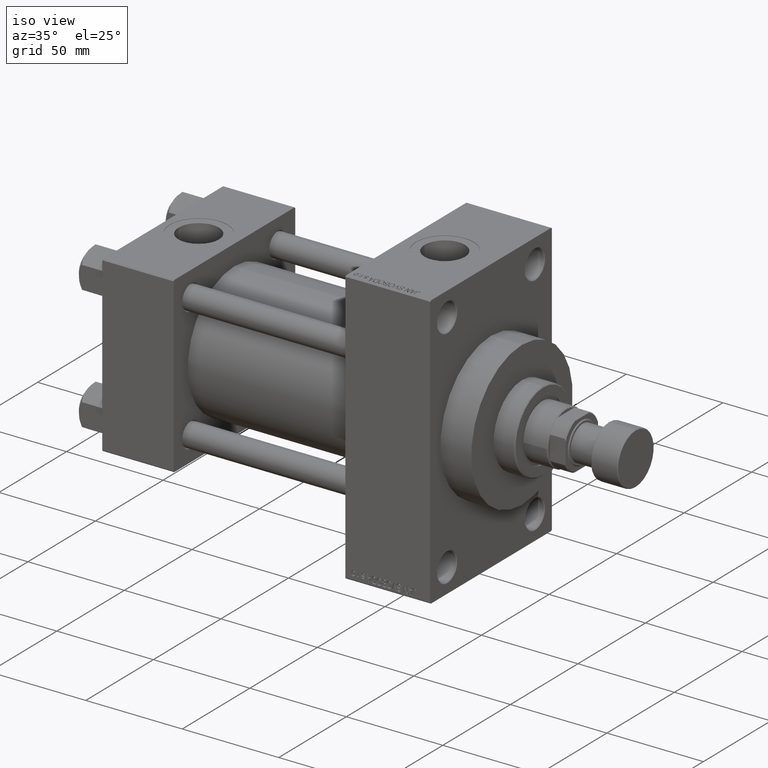
[diagram: clean part render]
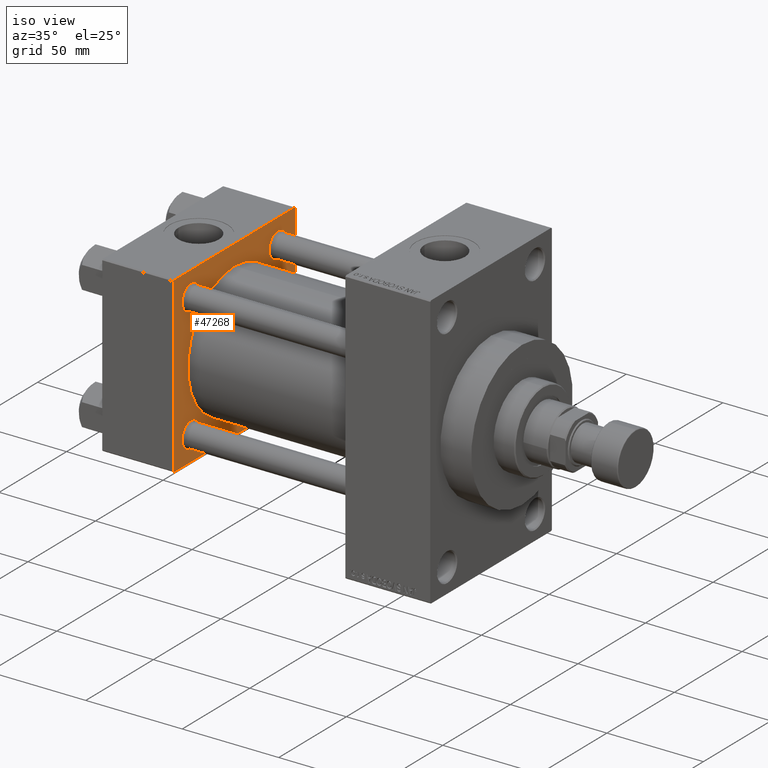
[diagram: same view with one face highlighted and labeled with its STEP entity id]
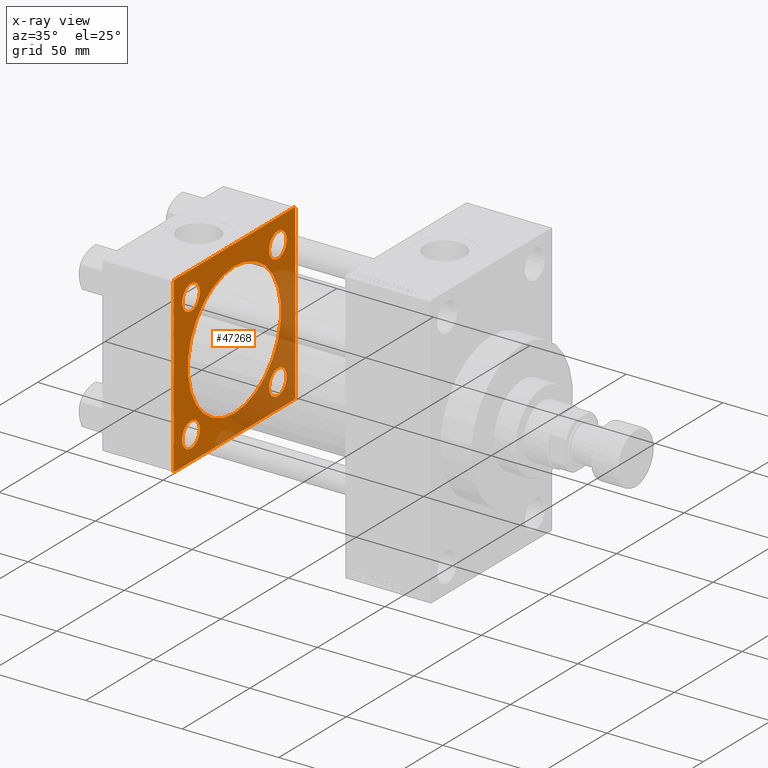
[diagram: x-ray of the same camera — body ghosted, the highlighted face saturated]
A machine part, iso view. The second image highlights one B-rep face of the part: STEP entity #47268.
The next image is the same camera in x-ray: the body ghosted, the highlighted face saturated — about 32% of this face is hidden behind the body in this view.
In plain terms, the highlighted planar face has unit normal (-1, 0, 0).
Its self-contained STEP definition (entity closure, byte-faithful):
#154 = ORIENTED_EDGE ( 'NONE', *, *, #6640, .T. ) ;
#313 = FACE_OUTER_BOUND ( 'NONE', #21909, .T. ) ;
#762 = ORIENTED_EDGE ( 'NONE', *, *, #43639, .T. ) ;
#1005 = DIRECTION ( 'NONE',  ( -1.000000000000000000, 0.000000000000000000, -0.000000000000000000 ) ) ;
#1214 = EDGE_CURVE ( 'NONE', #13415, #41546, #13810, .T. ) ;
#1744 = EDGE_CURVE ( 'NONE', #32832, #40432, #7410, .T. ) ;
#1947 = VECTOR ( 'NONE', #41657, 1000.000000000000000 ) ;
#2139 = ORIENTED_EDGE ( 'NONE', *, *, #1744, .T. ) ;
#2208 = CARTESIAN_POINT ( 'NONE',  ( 37.00000000000000000, 45.00000000000000000, 44.49999999999999289 ) ) ;
#2610 = CIRCLE ( 'NONE', #45731, 6.499999999999950262 ) ;
#2832 = CARTESIAN_POINT ( 'NONE',  ( 37.00000000000000000, 44.49999999999997158, 45.00000000000000711 ) ) ;
#3592 = VERTEX_POINT ( 'NONE', #26352 ) ;
#3739 = CARTESIAN_POINT ( 'NONE',  ( 37.00000000000000000, 44.50000000000000000, -44.99999999999999289 ) ) ;
#4885 = CIRCLE ( 'NONE', #37226, 6.500000000000005329 ) ;
#5237 = DIRECTION ( 'NONE',  ( -1.000000000000000000, 0.000000000000000000, -0.000000000000000000 ) ) ;
#5828 = VECTOR ( 'NONE', #41540, 1000.000000000000000 ) ;
#6129 = ORIENTED_EDGE ( 'NONE', *, *, #14183, .T. ) ;
#6640 = EDGE_CURVE ( 'NONE', #40432, #3592, #38177, .T. ) ;
#6924 = DIRECTION ( 'NONE',  ( 0.000000000000000000, 0.000000000000000000, 1.000000000000000000 ) ) ;
#7398 = DIRECTION ( 'NONE',  ( 1.000000000000000000, -0.000000000000000000, 0.000000000000000000 ) ) ;
#7402 = EDGE_CURVE ( 'NONE', #38244, #19714, #19474, .T. ) ;
#7410 = LINE ( 'NONE', #2832, #16556 ) ;
#7753 = CARTESIAN_POINT ( 'NONE',  ( 37.00000000000000711, -2.602085213965210642E-15, 34.50000000000000000 ) ) ;
#8129 = CARTESIAN_POINT ( 'NONE',  ( 37.00000000000000000, -32.14999999999997726, -32.15000000000000568 ) ) ;
#8151 = AXIS2_PLACEMENT_3D ( 'NONE', #29506, #44231, #25908 ) ;
#8355 = AXIS2_PLACEMENT_3D ( 'NONE', #22771, #27741, #37729 ) ;
#8369 = CARTESIAN_POINT ( 'NONE',  ( 37.00000000000000000, -32.14999999999997726, 25.65000000000004832 ) ) ;
#8753 = DIRECTION ( 'NONE',  ( 0.000000000000000000, 0.000000000000000000, 1.000000000000000000 ) ) ;
#9476 = CARTESIAN_POINT ( 'NONE',  ( 37.00000000000000000, 45.00000000000000000, -44.49999999999999289 ) ) ;
#9529 = VERTEX_POINT ( 'NONE', #7753 ) ;
#9992 = ORIENTED_EDGE ( 'NONE', *, *, #1214, .T. ) ;
#10052 = DIRECTION ( 'NONE',  ( 0.000000000000000000, 0.000000000000000000, 1.000000000000000000 ) ) ;
#10130 = CIRCLE ( 'NONE', #21663, 6.499999999999922728 ) ;
#10467 = LINE ( 'NONE', #25165, #17986 ) ;
#10481 = ORIENTED_EDGE ( 'NONE', *, *, #26926, .T. ) ;
#11108 = DIRECTION ( 'NONE',  ( 0.000000000000000000, -1.000000000000000000, -7.709882115452476934E-17 ) ) ;
#13415 = VERTEX_POINT ( 'NONE', #3739 ) ;
#13810 = LINE ( 'NONE', #9476, #33440 ) ;
#13907 = CARTESIAN_POINT ( 'NONE',  ( 37.00000000000000000, -32.14999999999997726, 32.15000000000000568 ) ) ;
#14162 = CARTESIAN_POINT ( 'NONE',  ( 37.00000000000000711, 1.622946243093158675E-15, -34.50000000000000000 ) ) ;
#14181 = CARTESIAN_POINT ( 'NONE',  ( 37.00000000000000000, 44.49999999999997158, 45.00000000000000711 ) ) ;
#14183 = EDGE_CURVE ( 'NONE', #25417, #36579, #45492, .T. ) ;
#14267 = CARTESIAN_POINT ( 'NONE',  ( 37.00000000000000000, 45.00000000000000000, -44.99999999999999289 ) ) ;
#14672 = CARTESIAN_POINT ( 'NONE',  ( 37.00000000000000000, 32.14999999999999147, -38.64999999999992042 ) ) ;
#14910 = VERTEX_POINT ( 'NONE', #28885 ) ;
#15350 = CARTESIAN_POINT ( 'NONE',  ( 37.00000000000000000, -32.14999999999997726, -25.65000000000005542 ) ) ;
#15456 = EDGE_LOOP ( 'NONE', ( #762, #41516 ) ) ;
#16114 = CARTESIAN_POINT ( 'NONE',  ( 37.00000000000000000, -44.49999999999997158, -45.00000000000000000 ) ) ;
#16261 = CARTESIAN_POINT ( 'NONE',  ( 37.00000000000000000, 32.14999999999999147, -25.65000000000007674 ) ) ;
#16534 = DIRECTION ( 'NONE',  ( 0.000000000000000000, 0.000000000000000000, 1.000000000000000000 ) ) ;
#16556 = VECTOR ( 'NONE', #46938, 999.9999999999998863 ) ;
#16809 = LINE ( 'NONE', #31493, #1947 ) ;
#17719 = EDGE_CURVE ( 'NONE', #26168, #32496, #10130, .T. ) ;
#17986 = VECTOR ( 'NONE', #39875, 1000.000000000000114 ) ;
#18050 = EDGE_LOOP ( 'NONE', ( #30762, #20074 ) ) ;
#18238 = DIRECTION ( 'NONE',  ( -1.000000000000000000, 0.000000000000000000, -0.000000000000000000 ) ) ;
#18315 = CIRCLE ( 'NONE', #8355, 6.499999999999922728 ) ;
#18348 = LINE ( 'NONE', #14267, #25699 ) ;
#18876 = FACE_BOUND ( 'NONE', #36515, .T. ) ;
#19001 = DIRECTION ( 'NONE',  ( 0.000000000000000000, 0.7071067811865672237, -0.7071067811865279218 ) ) ;
#19184 = ORIENTED_EDGE ( 'NONE', *, *, #31363, .F. ) ;
#19327 = CARTESIAN_POINT ( 'NONE',  ( 37.00000000000000000, 32.14999999999999147, 32.14999999999999858 ) ) ;
#19474 = LINE ( 'NONE', #16114, #35872 ) ;
#19714 = VERTEX_POINT ( 'NONE', #23748 ) ;
#20074 = ORIENTED_EDGE ( 'NONE', *, *, #23135, .T. ) ;
#20163 = CARTESIAN_POINT ( 'NONE',  ( 37.00000000000000000, -45.00000000000000000, -44.49999999999997158 ) ) ;
#20459 = CIRCLE ( 'NONE', #8151, 34.50000000000000000 ) ;
#20603 = CARTESIAN_POINT ( 'NONE',  ( 37.00000000000000000, -32.14999999999997726, 38.64999999999996305 ) ) ;
#21109 = CARTESIAN_POINT ( 'NONE',  ( 37.00000000000000000, -45.00000000000000000, 44.49999999999998579 ) ) ;
#21663 = AXIS2_PLACEMENT_3D ( 'NONE', #39871, #43485, #28529 ) ;
#21707 = EDGE_CURVE ( 'NONE', #28516, #47683, #4885, .T. ) ;
#21909 = EDGE_LOOP ( 'NONE', ( #40817, #9992, #28856, #2139, #154, #29206, #10481, #34079 ) ) ;
#22771 = CARTESIAN_POINT ( 'NONE',  ( 37.00000000000000000, 32.14999999999999147, -32.14999999999999858 ) ) ;
#23135 = EDGE_CURVE ( 'NONE', #47683, #28516, #41102, .T. ) ;
#23426 = DIRECTION ( 'NONE',  ( 0.000000000000000000, 0.000000000000000000, 1.000000000000000000 ) ) ;
#23485 = DIRECTION ( 'NONE',  ( -1.000000000000000000, 0.000000000000000000, -0.000000000000000000 ) ) ;
#23748 = CARTESIAN_POINT ( 'NONE',  ( 37.00000000000000000, -44.49999999999994316, -45.00000000000000000 ) ) ;
#23984 = CARTESIAN_POINT ( 'NONE',  ( 37.00000000000000000, 32.14999999999999147, 38.65000000000000568 ) ) ;
#25046 = CARTESIAN_POINT ( 'NONE',  ( 37.00000000000000000, -45.00000000000000000, 44.99999999999998579 ) ) ;
#25165 = CARTESIAN_POINT ( 'NONE',  ( 37.00000000000000000, -45.00000000000000000, 44.49999999999998579 ) ) ;
#25417 = VERTEX_POINT ( 'NONE', #20603 ) ;
#25425 = AXIS2_PLACEMENT_3D ( 'NONE', #35861, #7398, #6924 ) ;
#25522 = EDGE_LOOP ( 'NONE', ( #26443, #19184 ) ) ;
#25574 = ORIENTED_EDGE ( 'NONE', *, *, #36843, .T. ) ;
#25699 = VECTOR ( 'NONE', #11108, 1000.000000000000000 ) ;
#25908 = DIRECTION ( 'NONE',  ( 0.000000000000000000, 0.000000000000000000, 1.000000000000000000 ) ) ;
#26168 = VERTEX_POINT ( 'NONE', #14672 ) ;
#26249 = EDGE_CURVE ( 'NONE', #32832, #41546, #16809, .T. ) ;
#26352 = CARTESIAN_POINT ( 'NONE',  ( 37.00000000000000000, -44.49999999999997158, 44.99999999999998579 ) ) ;
#26443 = ORIENTED_EDGE ( 'NONE', *, *, #42166, .F. ) ;
#26926 = EDGE_CURVE ( 'NONE', #45871, #38244, #43617, .T. ) ;
#27741 = DIRECTION ( 'NONE',  ( -1.000000000000000000, 0.000000000000000000, -0.000000000000000000 ) ) ;
#28516 = VERTEX_POINT ( 'NONE', #46911 ) ;
#28529 = DIRECTION ( 'NONE',  ( 0.000000000000000000, 0.000000000000000000, 1.000000000000000000 ) ) ;
#28778 = AXIS2_PLACEMENT_3D ( 'NONE', #19327, #1005, #23426 ) ;
#28856 = ORIENTED_EDGE ( 'NONE', *, *, #26249, .F. ) ;
#28885 = CARTESIAN_POINT ( 'NONE',  ( 37.00000000000000000, -32.14999999999997726, -38.64999999999995595 ) ) ;
#29206 = ORIENTED_EDGE ( 'NONE', *, *, #47223, .T. ) ;
#29506 = CARTESIAN_POINT ( 'NONE',  ( 37.00000000000000711, -2.602085213965210642E-15, 0.000000000000000000 ) ) ;
#30194 = CARTESIAN_POINT ( 'NONE',  ( 37.00000000000000000, 0.000000000000000000, 0.000000000000000000 ) ) ;
#30444 = FACE_BOUND ( 'NONE', #15456, .T. ) ;
#30762 = ORIENTED_EDGE ( 'NONE', *, *, #21707, .T. ) ;
#30847 = AXIS2_PLACEMENT_3D ( 'NONE', #42021, #34552, #8753 ) ;
#31363 = EDGE_CURVE ( 'NONE', #36204, #9529, #20459, .T. ) ;
#31493 = CARTESIAN_POINT ( 'NONE',  ( 37.00000000000000000, 45.00000000000000000, 45.00000000000000711 ) ) ;
#32047 = DIRECTION ( 'NONE',  ( 0.000000000000000000, 0.000000000000000000, -1.000000000000000000 ) ) ;
#32496 = VERTEX_POINT ( 'NONE', #16261 ) ;
#32832 = VERTEX_POINT ( 'NONE', #2208 ) ;
#33440 = VECTOR ( 'NONE', #39361, 1000.000000000000114 ) ;
#34079 = ORIENTED_EDGE ( 'NONE', *, *, #7402, .T. ) ;
#34552 = DIRECTION ( 'NONE',  ( -1.000000000000000000, 0.000000000000000000, -0.000000000000000000 ) ) ;
#35285 = CARTESIAN_POINT ( 'NONE',  ( 37.00000000000000000, -32.14999999999997726, -32.15000000000000568 ) ) ;
#35861 = CARTESIAN_POINT ( 'NONE',  ( 37.00000000000000711, -2.602085213965210642E-15, 0.000000000000000000 ) ) ;
#35872 = VECTOR ( 'NONE', #19001, 1000.000000000000000 ) ;
#36204 = VERTEX_POINT ( 'NONE', #14162 ) ;
#36447 = EDGE_CURVE ( 'NONE', #43212, #14910, #38359, .T. ) ;
#36515 = EDGE_LOOP ( 'NONE', ( #42800, #25574 ) ) ;
#36579 = VERTEX_POINT ( 'NONE', #8369 ) ;
#36843 = EDGE_CURVE ( 'NONE', #32496, #26168, #18315, .T. ) ;
#37226 = AXIS2_PLACEMENT_3D ( 'NONE', #44781, #41648, #44548 ) ;
#37699 = FACE_BOUND ( 'NONE', #37975, .T. ) ;
#37704 = CARTESIAN_POINT ( 'NONE',  ( 37.00000000000000000, 45.00000000000000000, 45.00000000000000711 ) ) ;
#37729 = DIRECTION ( 'NONE',  ( 0.000000000000000000, 0.000000000000000000, 1.000000000000000000 ) ) ;
#37927 = DIRECTION ( 'NONE',  ( -0.000000000000000000, 0.000000000000000000, 1.000000000000000000 ) ) ;
#37975 = EDGE_LOOP ( 'NONE', ( #46843, #6129 ) ) ;
#38177 = LINE ( 'NONE', #37704, #5828 ) ;
#38200 = DIRECTION ( 'NONE',  ( 0.000000000000000000, 0.000000000000000000, 1.000000000000000000 ) ) ;
#38244 = VERTEX_POINT ( 'NONE', #20163 ) ;
#38359 = CIRCLE ( 'NONE', #43757, 6.499999999999950262 ) ;
#38916 = VECTOR ( 'NONE', #32047, 1000.000000000000000 ) ;
#39257 = CIRCLE ( 'NONE', #43894, 6.499999999999957367 ) ;
#39361 = DIRECTION ( 'NONE',  ( -0.000000000000000000, 0.7071067811865474617, 0.7071067811865474617 ) ) ;
#39871 = CARTESIAN_POINT ( 'NONE',  ( 37.00000000000000000, 32.14999999999999147, -32.14999999999999858 ) ) ;
#39875 = DIRECTION ( 'NONE',  ( -0.000000000000000000, -0.7071067811865474617, -0.7071067811865474617 ) ) ;
#40432 = VERTEX_POINT ( 'NONE', #14181 ) ;
#40817 = ORIENTED_EDGE ( 'NONE', *, *, #44498, .F. ) ;
#41047 = PLANE ( 'NONE',  #44952 ) ;
#41102 = CIRCLE ( 'NONE', #28778, 6.500000000000005329 ) ;
#41516 = ORIENTED_EDGE ( 'NONE', *, *, #36447, .T. ) ;
#41540 = DIRECTION ( 'NONE',  ( 0.000000000000000000, -1.000000000000000000, -2.312964634635742957E-16 ) ) ;
#41546 = VERTEX_POINT ( 'NONE', #42362 ) ;
#41648 = DIRECTION ( 'NONE',  ( -1.000000000000000000, 0.000000000000000000, -0.000000000000000000 ) ) ;
#41657 = DIRECTION ( 'NONE',  ( 0.000000000000000000, 0.000000000000000000, -1.000000000000000000 ) ) ;
#42021 = CARTESIAN_POINT ( 'NONE',  ( 37.00000000000000000, -32.14999999999997726, 32.15000000000000568 ) ) ;
#42130 = EDGE_CURVE ( 'NONE', #36579, #25417, #39257, .T. ) ;
#42166 = EDGE_CURVE ( 'NONE', #9529, #36204, #46194, .T. ) ;
#42362 = CARTESIAN_POINT ( 'NONE',  ( 37.00000000000000000, 45.00000000000000000, -44.49999999999996447 ) ) ;
#42800 = ORIENTED_EDGE ( 'NONE', *, *, #17719, .T. ) ;
#43212 = VERTEX_POINT ( 'NONE', #15350 ) ;
#43485 = DIRECTION ( 'NONE',  ( -1.000000000000000000, 0.000000000000000000, -0.000000000000000000 ) ) ;
#43617 = LINE ( 'NONE', #25046, #38916 ) ;
#43639 = EDGE_CURVE ( 'NONE', #14910, #43212, #2610, .T. ) ;
#43757 = AXIS2_PLACEMENT_3D ( 'NONE', #8129, #5237, #16534 ) ;
#43894 = AXIS2_PLACEMENT_3D ( 'NONE', #13907, #18238, #10052 ) ;
#44231 = DIRECTION ( 'NONE',  ( 1.000000000000000000, -0.000000000000000000, 0.000000000000000000 ) ) ;
#44437 = DIRECTION ( 'NONE',  ( -1.000000000000000000, 0.000000000000000000, -0.000000000000000000 ) ) ;
#44498 = EDGE_CURVE ( 'NONE', #13415, #19714, #18348, .T. ) ;
#44548 = DIRECTION ( 'NONE',  ( 0.000000000000000000, 0.000000000000000000, 1.000000000000000000 ) ) ;
#44679 = FACE_BOUND ( 'NONE', #18050, .T. ) ;
#44781 = CARTESIAN_POINT ( 'NONE',  ( 37.00000000000000000, 32.14999999999999147, 32.14999999999999858 ) ) ;
#44912 = FACE_BOUND ( 'NONE', #25522, .T. ) ;
#44952 = AXIS2_PLACEMENT_3D ( 'NONE', #30194, #44437, #37927 ) ;
#45492 = CIRCLE ( 'NONE', #30847, 6.499999999999957367 ) ;
#45731 = AXIS2_PLACEMENT_3D ( 'NONE', #35285, #23485, #38200 ) ;
#45871 = VERTEX_POINT ( 'NONE', #21109 ) ;
#46194 = CIRCLE ( 'NONE', #25425, 34.50000000000000000 ) ;
#46843 = ORIENTED_EDGE ( 'NONE', *, *, #42130, .T. ) ;
#46911 = CARTESIAN_POINT ( 'NONE',  ( 37.00000000000000000, 32.14999999999999147, 25.64999999999999147 ) ) ;
#46938 = DIRECTION ( 'NONE',  ( 0.000000000000000000, -0.7071067811865574537, 0.7071067811865376918 ) ) ;
#47223 = EDGE_CURVE ( 'NONE', #3592, #45871, #10467, .T. ) ;
#47268 = ADVANCED_FACE ( 'NONE', ( #30444, #18876, #37699, #44679, #44912, #313 ), #41047, .F. ) ;
#47683 = VERTEX_POINT ( 'NONE', #23984 ) ;